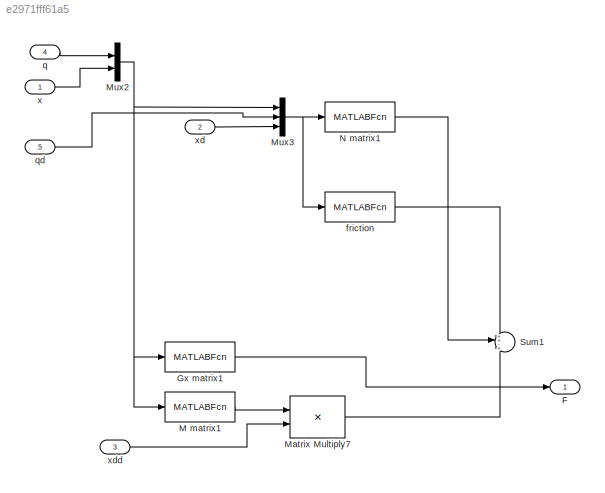
MODEL slx_e2971fff61a5
KIND model
CONFIG AbsTol = auto
CONFIG EnableMultiTasking = off
CONFIG FixedStep = auto
CONFIG MaxStep = auto
CONFIG MinStep = auto
CONFIG RelTol = 1e-3
CONFIG SampleTimeConstraint = Unconstrained
CONFIG Solver = VariableStepAuto
CONFIG SolverName = VariableStepAuto
CONFIG StartTime = 0.0
CONFIG StopTime = 10.0
BLOCK [Outport] F
  IconDisplay = Port number
  PortDimensions = 3
BLOCK [MATLABFcn] Gx matrix1
  MATLABFcn = Gxmatrix(u)
  Output1D = off
  Ports = [1, 1]
BLOCK [MATLABFcn] M matrix1
  MATLABFcn = Mmatrix(u)
  Output1D = off
  Ports = [1, 1]
BLOCK [Product] Matrix Multiply7
  InputSameDT = off
  Multiplication = Matrix(*)
  OutDataTypeStr = Inherit: Inherit via internal rule
  Ports = [2, 1]
  RndMeth = Floor
  SaturateOnIntegerOverflow = off
BLOCK [Mux] Mux2
  DisplayOption = bar
  Inputs = 2
  Ports = [2, 1]
BLOCK [Mux] Mux3
  DisplayOption = bar
  Inputs = 3
  Ports = [3, 1]
BLOCK [MATLABFcn] N matrix1
  MATLABFcn = Nmatrix(u)
  Output1D = off
  Ports = [1, 1]
BLOCK [Sum] Sum1
  Commented = on
  IconShape = round
  InputSameDT = off
  Inputs = ++-+
  OutDataTypeStr = Inherit: Inherit via internal rule
  Ports = [4, 1]
  SaturateOnIntegerOverflow = off
BLOCK [MATLABFcn] friction
  MATLABFcn = frictionMatrix(u)
  Output1D = off
  Ports = [1, 1]
BLOCK [Inport] q
  IconDisplay = Port number
  Port = 4
  PortDimensions = 3
BLOCK [Inport] qd
  IconDisplay = Port number
  Port = 5
  PortDimensions = 3
BLOCK [Inport] x
  IconDisplay = Port number
  PortDimensions = 3
BLOCK [Inport] xd
  IconDisplay = Port number
  Port = 2
  PortDimensions = 3
BLOCK [Inport] xdd
  IconDisplay = Port number
  Port = 3
  PortDimensions = 3
LINE Gx matrix1:1 -> F:1
LINE M matrix1:1 -> Matrix Multiply7:1
LINE Matrix Multiply7:1 -> Sum1:4
NET Mux2:1 -> Gx matrix1:1, M matrix1:1, Mux3:1
NET Mux3:1 -> N matrix1:1, friction:1
LINE N matrix1:1 -> Sum1:2
LINE friction:1 -> Sum1:1
LINE q:1 -> Mux2:1
LINE qd:1 -> Mux3:2
LINE x:1 -> Mux2:2
LINE xd:1 -> Mux3:3
LINE xdd:1 -> Matrix Multiply7:2
note: NET lines group one-source signal fan-out (src -> all destinations, sorted); 1:1 wires keep LINE
